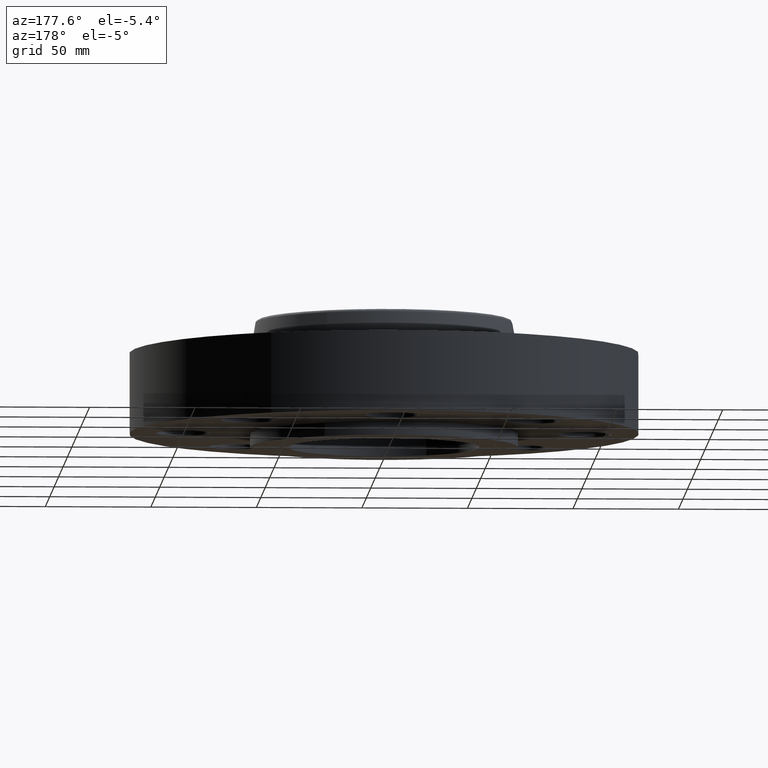
[diagram: clean part render]
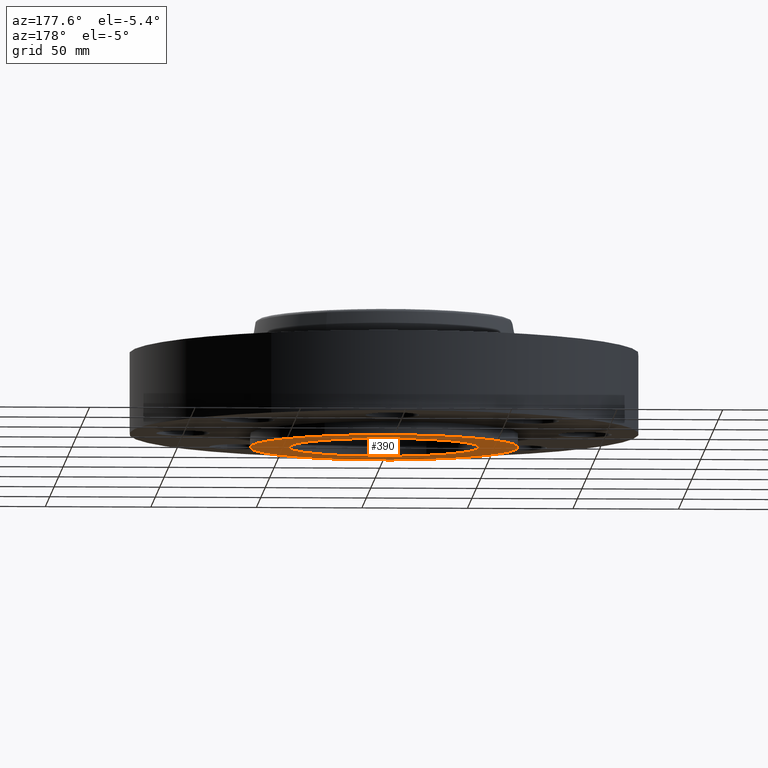
[diagram: same view with one face highlighted and labeled with its STEP entity id]
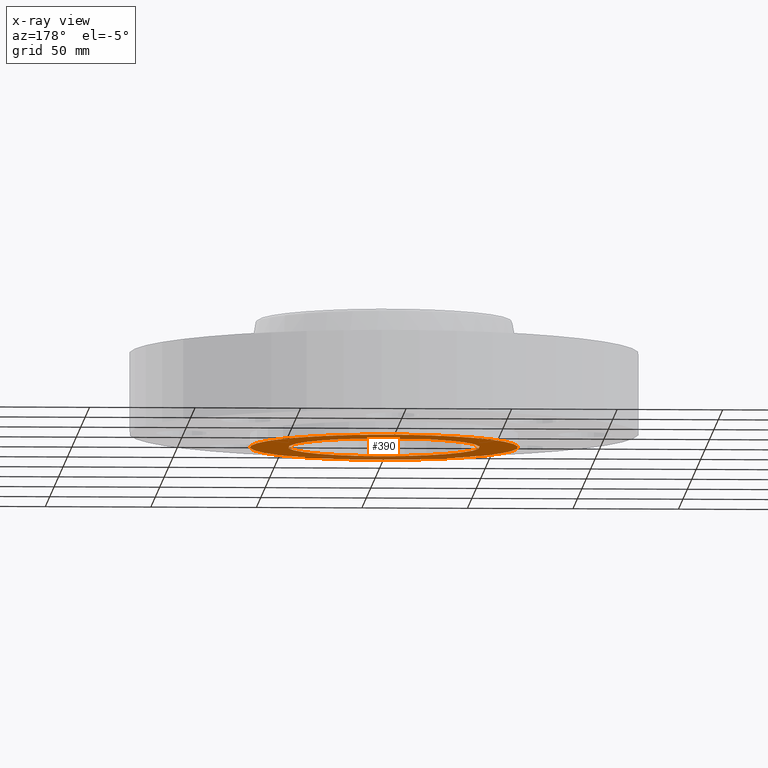
[diagram: x-ray of the same camera — body ghosted, the highlighted face saturated]
A machine part, auxiliary view. The second image highlights one B-rep face of the part: STEP entity #390.
The next image is the same camera in x-ray: the body ghosted, the highlighted face saturated — about 0% of this face is hidden behind the body in this view.
In plain terms, the highlighted planar face has unit normal (0, 0, -1).
Its self-contained STEP definition (entity closure, byte-faithful):
#334=AXIS2_PLACEMENT_3D('Circle Axis2P3D',#332,#333,$) ;
#353=AXIS2_PLACEMENT_3D('Circle Axis2P3D',#351,#352,$) ;
#366=AXIS2_PLACEMENT_3D('Plane Axis2P3D',#363,#364,#365) ;
#370=AXIS2_PLACEMENT_3D('Circle Axis2P3D',#368,#369,$) ;
#379=AXIS2_PLACEMENT_3D('Circle Axis2P3D',#377,#378,$) ;
#329=CARTESIAN_POINT('Vertex',(0.855774586412,1.56648487298,-0.250000000001)) ;
#332=CARTESIAN_POINT('Axis2P3D Location',(0.,0.,-0.250000000001)) ;
#336=CARTESIAN_POINT('Vertex',(-0.855774586412,-1.56648487298,-0.250000000001)) ;
#351=CARTESIAN_POINT('Axis2P3D Location',(0.,0.,-0.250000000001)) ;
#363=CARTESIAN_POINT('Axis2P3D Location',(0.,1.78500000001,-0.250000000001)) ;
#368=CARTESIAN_POINT('Axis2P3D Location',(0.,0.,-0.250000000001)) ;
#372=CARTESIAN_POINT('Vertex',(-1.19856384652,-2.19395640473,-0.250000000001)) ;
#374=CARTESIAN_POINT('Vertex',(1.19856384652,2.19395640473,-0.250000000001)) ;
#377=CARTESIAN_POINT('Axis2P3D Location',(0.,0.,-0.250000000001)) ;
#333=DIRECTION('Axis2P3D Direction',(0.,0.,-0.0393700787402)) ;
#352=DIRECTION('Axis2P3D Direction',(0.,0.,-0.0393700787402)) ;
#364=DIRECTION('Axis2P3D Direction',(0.,0.,-0.0393700787402)) ;
#365=DIRECTION('Axis2P3D XDirection',(0.0393700787402,0.,0.)) ;
#369=DIRECTION('Axis2P3D Direction',(0.,0.,-0.0393700787402)) ;
#378=DIRECTION('Axis2P3D Direction',(0.,0.,-0.0393700787402)) ;
#383=ORIENTED_EDGE('',*,*,#376,.T.) ;
#384=ORIENTED_EDGE('',*,*,#381,.T.) ;
#387=ORIENTED_EDGE('',*,*,#338,.F.) ;
#388=ORIENTED_EDGE('',*,*,#355,.F.) ;
#389=FACE_BOUND('',#386,.T.) ;
#390=ADVANCED_FACE('PartBody',(#385,#389),#367,.T.) ;
#335=CIRCLE('generated circle',#334,1.78500000001) ;
#354=CIRCLE('generated circle',#353,1.78500000001) ;
#371=CIRCLE('generated circle',#370,2.50000000001) ;
#380=CIRCLE('generated circle',#379,2.50000000001) ;
#338=EDGE_CURVE('',#330,#337,#335,.T.) ;
#355=EDGE_CURVE('',#337,#330,#354,.T.) ;
#376=EDGE_CURVE('',#373,#375,#371,.T.) ;
#381=EDGE_CURVE('',#375,#373,#380,.T.) ;
#382=EDGE_LOOP('',(#383,#384)) ;
#386=EDGE_LOOP('',(#387,#388)) ;
#385=FACE_OUTER_BOUND('',#382,.T.) ;
#367=PLANE('',#366) ;
#330=VERTEX_POINT('',#329) ;
#337=VERTEX_POINT('',#336) ;
#373=VERTEX_POINT('',#372) ;
#375=VERTEX_POINT('',#374) ;